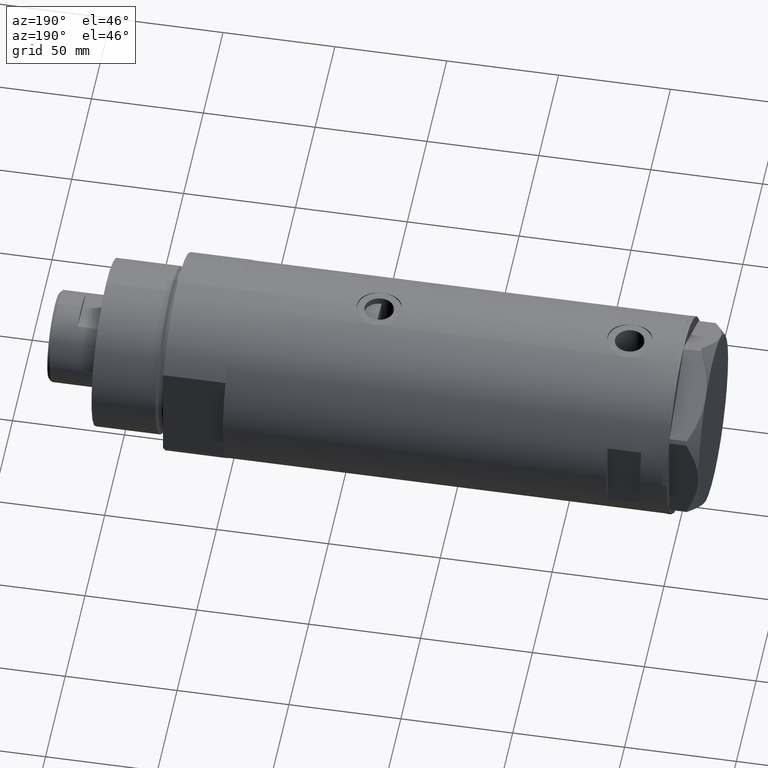
[diagram: clean part render]
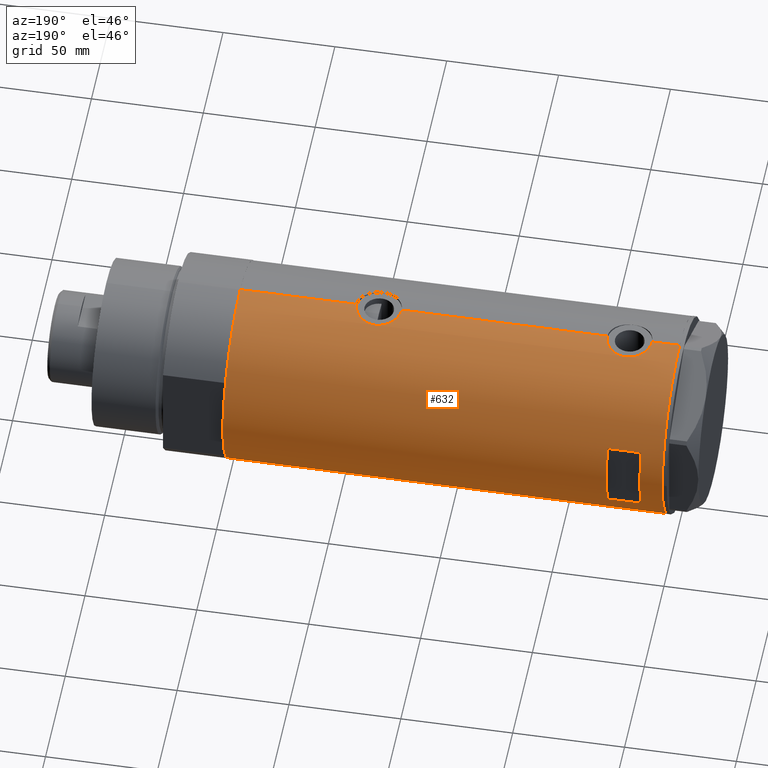
[diagram: same view with one face highlighted and labeled with its STEP entity id]
A machine part, auxiliary view. The second image highlights one B-rep face of the part: STEP entity #632.
In plain terms, the highlighted cylindrical surface (partial cylindrical patch) has radius 44 mm, axis along (-1, -0, 0).
Its self-contained STEP definition (entity closure, byte-faithful):
#7 = CARTESIAN_POINT ( 'NONE',  ( -43.66555354895124452, 5.415612800338318600, 77.32656357177557993 ) ) ;
#11 = CARTESIAN_POINT ( 'NONE',  ( 43.80640706382535399, 4.134078575915393294, -26.98867178437913239 ) ) ;
#26 = ORIENTED_EDGE ( 'NONE', *, *, #3050, .F. ) ;
#29 = B_SPLINE_CURVE_WITH_KNOTS ( 'NONE', 3,
 ( #2065, #353, #128, #1561, #1220, #1977, #2256, #2966, #4385, #4428, #1239, #515, #2329, #901, #2310, #3381, #304, #3032, #675, #3584, #1377, #3880, #2478, #698, #1806, #651, #2053, #89, #1448, #4303, #3832, #3136, #1022, #1548, #3695, #115, #3745, #2097, #3549, #4185, #1374, #3853, #11, #415, #1356, #3475, #1085, #362, #1749, #37 ),
 .UNSPECIFIED., .F., .F.,
 ( 4, 2, 2, 2, 2, 2, 2, 2, 2, 2, 2, 2, 2, 2, 2, 2, 2, 2, 2, 2, 2, 2, 2, 2, 4 ),
 ( 2.755634020688765633E-18, 0.001960456513248879772, 0.002940684769873318574, 0.003920913026497756942, 0.005881369539746635414, 0.006861597796371073782, 0.007841826052995512150, 0.009802282566244404499, 0.01078251082286885675, 0.01176273907949330899, 0.01274296733611776297, 0.01372319559274221522, 0.01568365210599110063, 0.01764410861923998777, 0.01960456513248886798, 0.02058479338911332196, 0.02156502164573776553, 0.02254524990236220564, 0.02352547815898664574, 0.02548593467223553288, 0.02646616292885997299, 0.02744639118548441656, 0.02940684769873329329, 0.03038707595535772993, 0.03136730421198216656 ),
 .UNSPECIFIED. ) ;
#32 = CARTESIAN_POINT ( 'NONE',  ( -43.71938389712227746, 4.966728892888062852, 78.01614452340872674 ) ) ;
#37 = CARTESIAN_POINT ( 'NONE',  ( 44.00000000000000000, -3.917142467416489149E-21, -26.10000000000000497 ) ) ;
#59 = CARTESIAN_POINT ( 'NONE',  ( -44.00000000000000000, 4.742435893011557518E-16, 80.45000000000001705 ) ) ;
#71 = LINE ( 'NONE', #406, #516 ) ;
#79 = CARTESIAN_POINT ( 'NONE',  ( -43.95549163632549750, 2.014511215452027937, 68.26941044295020333 ) ) ;
#89 = CARTESIAN_POINT ( 'NONE',  ( 42.92259096922158790, 9.678247830257131312, -33.49994006971207483 ) ) ;
#93 = VERTEX_POINT ( 'NONE', #2552 ) ;
#103 = CARTESIAN_POINT ( 'NONE',  ( -43.74833112883977293, 4.708208586952001617, 78.33050383508880543 ) ) ;
#115 = CARTESIAN_POINT ( 'NONE',  ( 43.35257020184194232, 7.523219862841651562, -29.50397445915864481 ) ) ;
#128 = CARTESIAN_POINT ( 'NONE',  ( 43.98503110884232825, 1.314607393679877445, -46.03470984345550221 ) ) ;
#137 = CARTESIAN_POINT ( 'NONE',  ( 43.61291203895921598, 5.829986172017926016, 67.76871289213170257 ) ) ;
#144 = LINE ( 'NONE', #4344, #3696 ) ;
#158 = CARTESIAN_POINT ( 'NONE',  ( 43.04663170950395568, 9.110642017076083121, 71.76452497809607678 ) ) ;
#177 = CARTESIAN_POINT ( 'NONE',  ( 43.27822890220284791, 7.945655169171516263, 69.79274616710709722 ) ) ;
#197 = CARTESIAN_POINT ( 'NONE',  ( 42.84863276153905787, 9.999733523508361088, 75.24130095249223871 ) ) ;
#211 = CARTESIAN_POINT ( 'NONE',  ( 15.96871942267132027, 40.99999999999999289, 73.20000000000000284 ) ) ;
#217 = CARTESIAN_POINT ( 'NONE',  ( 43.77939001959705223, 4.442287752090382291, 66.91693822440836925 ) ) ;
#228 = EDGE_CURVE ( 'NONE', #2196, #2758, #1218, .T. ) ;
#254 = CARTESIAN_POINT ( 'NONE',  ( -43.71938389712227035, 4.966728892888067293, -58.08385547659131021 ) ) ;
#290 = ORIENTED_EDGE ( 'NONE', *, *, #2412, .T. ) ;
#291 = CARTESIAN_POINT ( 'NONE',  ( 43.13962074468734897, 8.660138848900670538, 80.91089741163936822 ) ) ;
#303 = CARTESIAN_POINT ( 'NONE',  ( -43.95549163632549750, 2.014511215452028825, -67.83058955704980519 ) ) ;
#304 = CARTESIAN_POINT ( 'NONE',  ( 43.13897484505559987, 8.663345277311671921, -41.10529600060514355 ) ) ;
#308 = EDGE_LOOP ( 'NONE', ( #508, #290, #1293, #4309, #4290, #4366, #4537, #2753, #2470, #587, #2109, #3405 ) ) ;
#312 = EDGE_CURVE ( 'NONE', #3134, #1216, #29, .T. ) ;
#353 = CARTESIAN_POINT ( 'NONE',  ( 44.00000000000002132, 0.6630566900259828866, -46.10000000000002984 ) ) ;
#356 = CARTESIAN_POINT ( 'NONE',  ( -43.97068415157983878, 1.617901284326946909, 80.24045128300046770 ) ) ;
#362 = CARTESIAN_POINT ( 'NONE',  ( 43.99635668041006653, 0.6544833911834557760, -26.11599291522469457 ) ) ;
#374 = AXIS2_PLACEMENT_3D ( 'NONE', #381, #2547, #4288 ) ;
#381 = CARTESIAN_POINT ( 'NONE',  ( 0.000000000000000000, 0.000000000000000000, 88.20000000000000284 ) ) ;
#383 = CARTESIAN_POINT ( 'NONE',  ( -43.67867890111967455, 5.309046579850785541, 70.89577220923978018 ) ) ;
#406 = CARTESIAN_POINT ( 'NONE',  ( 15.96871942267132027, 40.99999999999999289, -98.20000000000000284 ) ) ;
#410 = EDGE_CURVE ( 'NONE', #2929, #1872, #3603, .T. ) ;
#412 = CARTESIAN_POINT ( 'NONE',  ( -43.55963022497231663, 6.210088036293396563, 75.01646163017424840 ) ) ;
#415 = CARTESIAN_POINT ( 'NONE',  ( 43.88561577393361546, 3.228056721358710135, -26.61278334272174817 ) ) ;
#478 = CARTESIAN_POINT ( 'NONE',  ( 43.17277162440354488, 8.493905080221262338, 70.61212964891505806 ) ) ;
#508 = ORIENTED_EDGE ( 'NONE', *, *, #1327, .T. ) ;
#515 = CARTESIAN_POINT ( 'NONE',  ( 43.50265731352001097, 6.601850423195605444, -43.61819167298953914 ) ) ;
#516 = VECTOR ( 'NONE', #1430, 1000.000000000000000 ) ;
#556 = DIRECTION ( 'NONE',  ( 0.000000000000000000, 0.000000000000000000, 1.000000000000000000 ) ) ;
#561 = CARTESIAN_POINT ( 'NONE',  ( -43.91413175532568403, 2.773555030353458850, -56.28415761633254277 ) ) ;
#569 = CARTESIAN_POINT ( 'NONE',  ( -43.55963022497232373, 6.210088036293401004, -61.08353836982577434 ) ) ;
#577 = CARTESIAN_POINT ( 'NONE',  ( -43.95446647384544292, 2.010857111636600969, -55.97875773636064878 ) ) ;
#587 = ORIENTED_EDGE ( 'NONE', *, *, #1507, .F. ) ;
#590 = CARTESIAN_POINT ( 'NONE',  ( -43.80687348212602217, 4.128385987736840512, -66.61048743310966813 ) ) ;
#591 = VECTOR ( 'NONE', #3412, 1000.000000000000000 ) ;
#618 = LINE ( 'NONE', #904, #2284 ) ;
#632 = ADVANCED_FACE ( 'NONE', ( #832, #2236 ), #3311, .T. ) ;
#636 = CARTESIAN_POINT ( 'NONE',  ( 43.68141895191831736, 5.292250119194734204, 84.39104952285195793 ) ) ;
#651 = CARTESIAN_POINT ( 'NONE',  ( 42.84850876528982155, 10.00026482975808051, -35.44941694529577347 ) ) ;
#675 = CARTESIAN_POINT ( 'NONE',  ( 43.04663170950394857, 9.110642017076081345, -40.23547502190394454 ) ) ;
#687 = CARTESIAN_POINT ( 'NONE',  ( -43.88883895882799635, 3.130924084324101297, 68.78687544251856423 ) ) ;
#698 = CARTESIAN_POINT ( 'NONE',  ( 42.86370458161098185, 9.935807968041572735, -37.40904550429866049 ) ) ;
#711 = CARTESIAN_POINT ( 'NONE',  ( -43.83593455218809254, 3.811409182021277431, 79.17014927703502281 ) ) ;
#740 = CARTESIAN_POINT ( 'NONE',  ( -43.99999999999997158, 0.4081702738789203533, 67.94999999999997442 ) ) ;
#747 = CIRCLE ( 'NONE', #1389, 44.00000000000000000 ) ;
#832 = FACE_BOUND ( 'NONE', #1620, .T. ) ;
#838 = CARTESIAN_POINT ( 'NONE',  ( 42.86370458161099606, 9.935807968041567406, 74.59095449570133951 ) ) ;
#863 = CARTESIAN_POINT ( 'NONE',  ( 43.46520118248735542, 6.843279251446916511, 68.60101672787835980 ) ) ;
#877 = EDGE_CURVE ( 'NONE', #2196, #2775, #2369, .T. ) ;
#887 = CARTESIAN_POINT ( 'NONE',  ( -44.00000000000000000, 6.472851849715296073E-16, -55.65000000000000568 ) ) ;
#901 = CARTESIAN_POINT ( 'NONE',  ( 43.35294442506074120, 7.532526048221052761, -42.70935414491112425 ) ) ;
#904 = CARTESIAN_POINT ( 'NONE',  ( 44.00000000000000000, 0.000000000000000000, -98.20000000000000284 ) ) ;
#905 = CARTESIAN_POINT ( 'NONE',  ( 0.000000000000000000, 0.000000000000000000, -98.20000000000000284 ) ) ;
#909 = CARTESIAN_POINT ( 'NONE',  ( -43.94507179847653333, 2.206027755801681867, -56.04868477718203224 ) ) ;
#919 = CARTESIAN_POINT ( 'NONE',  ( -43.88883895882800346, 3.130924084324098633, -67.31312455748147272 ) ) ;
#956 = EDGE_CURVE ( 'NONE', #4076, #4038, #71, .T. ) ;
#983 = CARTESIAN_POINT ( 'NONE',  ( -43.55382423478827292, 6.250151562062090882, -62.30589529487338041 ) ) ;
#1013 = CARTESIAN_POINT ( 'NONE',  ( -43.97754480947185129, 1.419697478855583617, 80.29003276052073090 ) ) ;
#1022 = CARTESIAN_POINT ( 'NONE',  ( 43.17306590853065273, 8.492365194390522731, -30.80987467306545113 ) ) ;
#1034 = CARTESIAN_POINT ( 'NONE',  ( -43.55382423478827292, 6.250151562062086441, 73.79410470512661391 ) ) ;
#1062 = CARTESIAN_POINT ( 'NONE',  ( -43.55973179376100290, 6.209370339246232717, 73.37938232940132366 ) ) ;
#1082 = CARTESIAN_POINT ( 'NONE',  ( -43.66575107734168171, 5.414026674167576658, 71.07064911962299902 ) ) ;
#1085 = CARTESIAN_POINT ( 'NONE',  ( 43.98169492814103876, 1.310824514239766536, -26.18080219619315585 ) ) ;
#1105 = CARTESIAN_POINT ( 'NONE',  ( -43.59867737633045692, 5.931302618788633296, 72.18750504970115855 ) ) ;
#1121 = DIRECTION ( 'NONE',  ( 0.000000000000000000, 0.000000000000000000, 1.000000000000000000 ) ) ;
#1152 = CARTESIAN_POINT ( 'NONE',  ( 43.71659050864931828, 5.015880325000608764, 67.22433174036180503 ) ) ;
#1168 = B_SPLINE_CURVE_WITH_KNOTS ( 'NONE', 3,
 ( #3621, #4361, #3671, #4041, #3261, #2216, #3645, #217, #1152, #137, #1586, #2925, #863, #2600, #177, #478, #1873, #3286, #158, #1516, #2945, #2651, #4018, #838, #197, #2262, #1920, #1566, #2994, #3101, #3430, #291, #1610, #2381, #2777, #4497, #4195, #1697, #4152, #636, #3756, #2023, #4543, #1982, #1673, #4519, #1308, #2041, #2739, #4477 ),
 .UNSPECIFIED., .F., .F.,
 ( 4, 2, 2, 2, 2, 2, 2, 2, 2, 2, 2, 2, 2, 2, 2, 2, 2, 2, 2, 2, 2, 2, 2, 2, 4 ),
 ( 2.479523669370822448E-18, 0.001960456513248879339, 0.002940684769873313370, 0.003920913026497747401, 0.005881369539746631077, 0.006861597796371071180, 0.007841826052995510415, 0.009802282566244392356, 0.01078251082286883072, 0.01176273907949326909, 0.01274296733611770746, 0.01372319559274214583, 0.01568365210599106593, 0.01764410861923998430, 0.01960456513248890267, 0.02058479338911334278, 0.02156502164573777941, 0.02254524990236221951, 0.02352547815898665615, 0.02548593467223552941, 0.02646616292885996952, 0.02744639118548440615, 0.02940684769873327942, 0.03038707595535771258, 0.03136730421198213881 ),
 .UNSPECIFIED. ) ;
#1215 = DIRECTION ( 'NONE',  ( 0.000000000000000000, 0.000000000000000000, 1.000000000000000000 ) ) ;
#1216 = VERTEX_POINT ( 'NONE', #4166 ) ;
#1218 = B_SPLINE_CURVE_WITH_KNOTS ( 'NONE', 3,
 ( #887, #4087, #1961, #2292, #3718, #577, #909, #561, #1942, #3408, #4434, #2263, #254, #4394, #2315, #3739, #1611, #1634, #4042, #4424, #569, #1951, #983, #3793, #1665, #3088, #1598, #3049, #4487, #4507, #3026, #4448, #590, #1322, #2750, #919, #2709, #1647, #303, #1300, #4165, #2032, #2394 ),
 .UNSPECIFIED., .F., .F.,
 ( 4, 2, 2, 2, 2, 2, 2, 2, 1, 2, 2, 2, 2, 2, 2, 2, 2, 2, 2, 2, 2, 4 ),
 ( 6.289190293195367850E-19, 0.001222818171749683351, 0.001834227257624524918, 0.002445636343499366702, 0.003668454515249052871, 0.004891272686998739475, 0.006114090858748426512, 0.006725499944623267862, 0.007336909030498110947, 0.007948318116372952297, 0.008559727202247794514, 0.009782545373997478949, 0.01100536354574716165, 0.01222818171749684782, 0.01283959080337170912, 0.01345099988924656868, 0.01467381806099629128, 0.01589663623274601215, 0.01650804531862087518, 0.01711945440449573475, 0.01834227257624545734, 0.01956509074799518341 ),
 .UNSPECIFIED. ) ;
#1220 = CARTESIAN_POINT ( 'NONE',  ( 43.92466059386730137, 2.593004216484785740, -45.76356669671356059 ) ) ;
#1221 = VERTEX_POINT ( 'NONE', #4209 ) ;
#1224 = CARTESIAN_POINT ( 'NONE',  ( -44.00000000000000000, 4.742435893011557518E-16, 80.45000000000001705 ) ) ;
#1239 = CARTESIAN_POINT ( 'NONE',  ( 43.57657781376907025, 6.094873943596692101, -44.03474301119596390 ) ) ;
#1279 = EDGE_CURVE ( 'NONE', #3464, #3134, #144, .T. ) ;
#1283 = CARTESIAN_POINT ( 'NONE',  ( 44.00000000000000000, 2.836945177865671897E-15, -46.10000000000000853 ) ) ;
#1293 = ORIENTED_EDGE ( 'NONE', *, *, #228, .F. ) ;
#1300 = CARTESIAN_POINT ( 'NONE',  ( -43.97181775256600389, 1.624866278047417012, -67.94892918385096436 ) ) ;
#1308 = CARTESIAN_POINT ( 'NONE',  ( 43.98169492814103165, 1.310824514239766536, 85.81919780380685836 ) ) ;
#1322 = CARTESIAN_POINT ( 'NONE',  ( -43.83576802966639008, 3.813209221108468938, -66.86865490354712449 ) ) ;
#1327 = EDGE_CURVE ( 'NONE', #3464, #1221, #1979, .T. ) ;
#1356 = CARTESIAN_POINT ( 'NONE',  ( 43.92756755766649235, 2.604528169608121946, -26.42286588097656974 ) ) ;
#1358 = EDGE_CURVE ( 'NONE', #3632, #4076, #3623, .T. ) ;
#1369 = CARTESIAN_POINT ( 'NONE',  ( -43.64122538274737195, 5.608286354294323317, 76.96611386963340351 ) ) ;
#1374 = CARTESIAN_POINT ( 'NONE',  ( 43.71454618729809738, 5.012329428678962806, -27.44063025941690270 ) ) ;
#1377 = CARTESIAN_POINT ( 'NONE',  ( 42.96879251999280314, 9.470609476412120031, -39.32722899941056482 ) ) ;
#1382 = CARTESIAN_POINT ( 'NONE',  ( -15.96871942267132027, 40.99999999999999289, 73.20000000000000284 ) ) ;
#1389 = AXIS2_PLACEMENT_3D ( 'NONE', #4305, #1121, #3273 ) ;
#1393 = CARTESIAN_POINT ( 'NONE',  ( -43.99413512814552263, 0.8228129877960659311, 67.99091685674179075 ) ) ;
#1410 = DIRECTION ( 'NONE',  ( 0.000000000000000000, 4.625929269271481378E-15, 1.000000000000000000 ) ) ;
#1418 = CARTESIAN_POINT ( 'NONE',  ( -44.00000000000000711, 0.4135148353567996149, 80.45000000000001705 ) ) ;
#1430 = DIRECTION ( 'NONE',  ( -0.000000000000000000, -0.000000000000000000, -1.000000000000000000 ) ) ;
#1437 = LINE ( 'NONE', #2070, #1840 ) ;
#1448 = CARTESIAN_POINT ( 'NONE',  ( 42.96547725528407113, 9.488625330801086832, -32.87549652788927546 ) ) ;
#1463 = CARTESIAN_POINT ( 'NONE',  ( -44.00000000000000000, 5.388445916248353619E-15, 98.20000000000000284 ) ) ;
#1507 = EDGE_CURVE ( 'NONE', #1216, #93, #618, .T. ) ;
#1516 = CARTESIAN_POINT ( 'NONE',  ( 42.99303682946563043, 9.360292926890506848, 72.36575779792798357 ) ) ;
#1527 = VECTOR ( 'NONE', #2512, 1000.000000000000000 ) ;
#1548 = CARTESIAN_POINT ( 'NONE',  ( 43.24261242176996234, 8.130827601038834729, -30.26944813145831148 ) ) ;
#1561 = CARTESIAN_POINT ( 'NONE',  ( 43.94229162222111285, 2.275476993733913655, -45.84314464222307350 ) ) ;
#1566 = CARTESIAN_POINT ( 'NONE',  ( 42.92259096922160211, 9.678247830257127760, 78.50005993028796070 ) ) ;
#1577 = EDGE_CURVE ( 'NONE', #4038, #4414, #3102, .T. ) ;
#1581 = CARTESIAN_POINT ( 'NONE',  ( 0.000000000000000000, 0.000000000000000000, -98.20000000000000284 ) ) ;
#1586 = CARTESIAN_POINT ( 'NONE',  ( 43.57657781376909156, 6.094873943596678778, 67.96525698880405741 ) ) ;
#1598 = CARTESIAN_POINT ( 'NONE',  ( -43.62981559643959883, 5.696090409300659019, -64.48051365414528391 ) ) ;
#1607 = CARTESIAN_POINT ( 'NONE',  ( -44.00000000000000000, 5.388445781992449847E-15, -68.15000000000001990 ) ) ;
#1610 = CARTESIAN_POINT ( 'NONE',  ( 43.17306590853067405, 8.492365194390513849, 81.19012532693457729 ) ) ;
#1611 = CARTESIAN_POINT ( 'NONE',  ( -43.61859254253774054, 5.782454868881357513, -59.50213599105533291 ) ) ;
#1620 = EDGE_LOOP ( 'NONE', ( #26, #3410, #4476, #4494 ) ) ;
#1634 = CARTESIAN_POINT ( 'NONE',  ( -43.59995593514495482, 5.920088975424572908, -59.88582091308221322 ) ) ;
#1642 = DIRECTION ( 'NONE',  ( 0.000000000000000000, 0.000000000000000000, 1.000000000000000000 ) ) ;
#1647 = CARTESIAN_POINT ( 'NONE',  ( -43.92459115390705193, 2.581892149021001615, -67.59545827073348789 ) ) ;
#1665 = CARTESIAN_POINT ( 'NONE',  ( -43.58221825186232223, 6.049526113783029402, -63.52262970817960763 ) ) ;
#1670 = VECTOR ( 'NONE', #1642, 1000.000000000000000 ) ;
#1673 = CARTESIAN_POINT ( 'NONE',  ( 43.92756755766649235, 2.604528169608113064, 85.57713411902345513 ) ) ;
#1697 = CARTESIAN_POINT ( 'NONE',  ( 43.50382207688846847, 6.605942769308303930, 83.43604688838220795 ) ) ;
#1749 = CARTESIAN_POINT ( 'NONE',  ( 44.00000000000002132, 0.3269372501759380545, -26.10000000000001918 ) ) ;
#1772 = CARTESIAN_POINT ( 'NONE',  ( -43.71901936021023971, 4.969830049220626655, 70.38832362301124590 ) ) ;
#1806 = CARTESIAN_POINT ( 'NONE',  ( 42.84863276153905787, 9.999733523508369970, -36.75869904750778261 ) ) ;
#1820 = CARTESIAN_POINT ( 'NONE',  ( -43.55386785759471024, 6.249847571481740971, 74.61054947617955690 ) ) ;
#1840 = VECTOR ( 'NONE', #3492, 1000.000000000000000 ) ;
#1872 = VERTEX_POINT ( 'NONE', #2277 ) ;
#1873 = CARTESIAN_POINT ( 'NONE',  ( 43.13897484505560698, 8.663345277311673698, 70.89470399939492040 ) ) ;
#1920 = CARTESIAN_POINT ( 'NONE',  ( 42.86396777580258544, 9.934664719553397916, 77.21576199026523568 ) ) ;
#1931 = VERTEX_POINT ( 'NONE', #1463 ) ;
#1937 = DIRECTION ( 'NONE',  ( 1.000000000000000000, 0.000000000000000000, 0.000000000000000000 ) ) ;
#1942 = CARTESIAN_POINT ( 'NONE',  ( -43.88968326835893663, 3.132363423941624259, -56.47620767643520168 ) ) ;
#1945 = CARTESIAN_POINT ( 'NONE',  ( -44.00000000000000000, 6.472851849715296073E-16, -55.65000000000000568 ) ) ;
#1951 = CARTESIAN_POINT ( 'NONE',  ( -43.55386785759470314, 6.249847571481745412, -61.48945052382045873 ) ) ;
#1961 = CARTESIAN_POINT ( 'NONE',  ( -43.99417607942193342, 0.8200150578638759624, -55.69063327483257808 ) ) ;
#1977 = CARTESIAN_POINT ( 'NONE',  ( 43.88297407487991109, 3.222431612395382228, -45.57228202029342157 ) ) ;
#1979 = CIRCLE ( 'NONE', #3840, 44.00000000000000000 ) ;
#1982 = CARTESIAN_POINT ( 'NONE',  ( 43.88561577393361546, 3.228056721358708359, 85.38721665727824472 ) ) ;
#2023 = CARTESIAN_POINT ( 'NONE',  ( 43.77712723341632994, 4.432620652875498557, 84.86995009759974096 ) ) ;
#2032 = CARTESIAN_POINT ( 'NONE',  ( -44.00000000000000711, 0.4081702738789189655, -68.15000000000003411 ) ) ;
#2041 = CARTESIAN_POINT ( 'NONE',  ( 43.99635668041008074, 0.6544833911834539997, 85.88400708477533385 ) ) ;
#2053 = CARTESIAN_POINT ( 'NONE',  ( 42.86396777580258544, 9.934664719553399692, -34.78423800973479274 ) ) ;
#2065 = CARTESIAN_POINT ( 'NONE',  ( 44.00000000000000000, 2.836945177865671897E-15, -46.10000000000000853 ) ) ;
#2070 = CARTESIAN_POINT ( 'NONE',  ( -44.00000000000000000, 5.388445916248353619E-15, -98.20000000000000284 ) ) ;
#2092 = CARTESIAN_POINT ( 'NONE',  ( -43.91315028150560096, 2.769134003554746482, 68.59317380624599991 ) ) ;
#2097 = CARTESIAN_POINT ( 'NONE',  ( 43.50382207688846847, 6.605942769308304818, -28.56395311161779915 ) ) ;
#2109 = ORIENTED_EDGE ( 'NONE', *, *, #312, .F. ) ;
#2111 = CARTESIAN_POINT ( 'NONE',  ( -43.61859254253774054, 5.782454868881351295, 76.59786400894466851 ) ) ;
#2143 = CARTESIAN_POINT ( 'NONE',  ( -43.80687348212602217, 4.128385987736833407, 69.48951256689038303 ) ) ;
#2163 = CARTESIAN_POINT ( 'NONE',  ( -15.96871942267132027, 40.99999999999999289, -98.20000000000000284 ) ) ;
#2196 = VERTEX_POINT ( 'NONE', #1945 ) ;
#2216 = CARTESIAN_POINT ( 'NONE',  ( 43.88297407487991109, 3.222431612395379119, 66.42771797970659975 ) ) ;
#2236 = FACE_OUTER_BOUND ( 'NONE', #308, .T. ) ;
#2256 = CARTESIAN_POINT ( 'NONE',  ( 43.85884410404901246, 3.534688330930388922, -45.46019808750336466 ) ) ;
#2262 = CARTESIAN_POINT ( 'NONE',  ( 42.84850876528983576, 10.00026482975808229, 76.55058305470424784 ) ) ;
#2263 = CARTESIAN_POINT ( 'NONE',  ( -43.74833112883975872, 4.708208586952008723, -57.76949616491121731 ) ) ;
#2277 = CARTESIAN_POINT ( 'NONE',  ( 44.00000000000000000, 0.000000000000000000, 98.20000000000000284 ) ) ;
#2284 = VECTOR ( 'NONE', #556, 1000.000000000000000 ) ;
#2292 = CARTESIAN_POINT ( 'NONE',  ( -43.97754480947186551, 1.419697478855586059, -55.80996723947924210 ) ) ;
#2310 = CARTESIAN_POINT ( 'NONE',  ( 43.27822890220284080, 7.945655169171516263, -42.20725383289290278 ) ) ;
#2315 = CARTESIAN_POINT ( 'NONE',  ( -43.66555354895123031, 5.415612800338319488, -58.77343642822444281 ) ) ;
#2329 = CARTESIAN_POINT ( 'NONE',  ( 43.46520118248736253, 6.843279251446920064, -43.39898327212166151 ) ) ;
#2338 = CARTESIAN_POINT ( 'NONE',  ( -44.00000000000000000, 5.388445916248353619E-15, -98.20000000000000284 ) ) ;
#2359 = EDGE_CURVE ( 'NONE', #3709, #1931, #3742, .T. ) ;
#2369 = LINE ( 'NONE', #3963, #1527 ) ;
#2378 = CARTESIAN_POINT ( 'NONE',  ( -44.00000000000000000, 5.388445781982983516E-15, 67.95000000000001705 ) ) ;
#2381 = CARTESIAN_POINT ( 'NONE',  ( 43.24261242176996234, 8.130827601038829400, 81.73055186854172405 ) ) ;
#2394 = CARTESIAN_POINT ( 'NONE',  ( -44.00000000000000000, 5.388445781992449847E-15, -68.15000000000001990 ) ) ;
#2412 = EDGE_CURVE ( 'NONE', #1221, #2758, #1437, .T. ) ;
#2421 = CARTESIAN_POINT ( 'NONE',  ( -43.94507179847653333, 2.206027755801677870, 80.05131522281796208 ) ) ;
#2444 = EDGE_CURVE ( 'NONE', #3709, #2775, #2445, .T. ) ;
#2445 = B_SPLINE_CURVE_WITH_KNOTS ( 'NONE', 3,
 ( #59, #1418, #3144, #1013, #356, #3847, #2421, #2522, #4222, #711, #2850, #103, #32, #4266, #7, #1369, #2111, #3211, #2797, #4244, #412, #1820, #1034, #1062, #2448, #1105, #3543, #3187, #1082, #383, #1772, #3916, #2143, #2779, #3872, #687, #2092, #3516, #79, #3945, #1393, #740, #2872 ),
 .UNSPECIFIED., .F., .F.,
 ( 4, 2, 2, 2, 2, 2, 2, 2, 1, 2, 2, 2, 2, 2, 2, 2, 2, 2, 2, 2, 2, 4 ),
 ( 4.607873388256435088E-19, 0.001222818171749670340, 0.001834227257624505619, 0.002445636343499341114, 0.003668454515249027284, 0.004891272686998713454, 0.006114090858748398756, 0.006725499944623259188, 0.007336909030498119620, 0.007948318116372978318, 0.008559727202247837882, 0.009782545373997518848, 0.01100536354574719981, 0.01222818171749687904, 0.01283959080337173861, 0.01345099988924659644, 0.01467381806099631383, 0.01589663623274603296, 0.01650804531862088906, 0.01711945440449574862, 0.01834227257624546428, 0.01956509074799517994 ),
 .UNSPECIFIED. ) ;
#2448 = CARTESIAN_POINT ( 'NONE',  ( -43.58221825186232223, 6.049526113783018744, 72.57737029182041510 ) ) ;
#2470 = ORIENTED_EDGE ( 'NONE', *, *, #3713, .F. ) ;
#2478 = CARTESIAN_POINT ( 'NONE',  ( 42.90786968859021044, 9.742642423712174704, -38.37802296547129544 ) ) ;
#2512 = DIRECTION ( 'NONE',  ( 0.000000000000000000, 0.000000000000000000, 1.000000000000000000 ) ) ;
#2522 = CARTESIAN_POINT ( 'NONE',  ( -43.91413175532567692, 2.773555030353453965, 79.81584238366747286 ) ) ;
#2547 = DIRECTION ( 'NONE',  ( -0.000000000000000000, -0.000000000000000000, -1.000000000000000000 ) ) ;
#2552 = CARTESIAN_POINT ( 'NONE',  ( 44.00000000000000000, -2.552687571866728611E-15, 65.90000000000001990 ) ) ;
#2580 = DIRECTION ( 'NONE',  ( 0.000000000000000000, 0.000000000000000000, 1.000000000000000000 ) ) ;
#2600 = CARTESIAN_POINT ( 'NONE',  ( 43.35294442506074120, 7.532526048221051873, 69.29064585508892549 ) ) ;
#2645 = DIRECTION ( 'NONE',  ( 1.000000000000000000, 0.000000000000000000, 0.000000000000000000 ) ) ;
#2651 = CARTESIAN_POINT ( 'NONE',  ( 42.92624534982631701, 9.661626915142809580, 73.29991995855291975 ) ) ;
#2709 = CARTESIAN_POINT ( 'NONE',  ( -43.91315028150559385, 2.769134003554746037, -67.50682619375406546 ) ) ;
#2739 = CARTESIAN_POINT ( 'NONE',  ( 44.00000000000000711, 0.3269372501759374994, 85.90000000000001990 ) ) ;
#2750 = CARTESIAN_POINT ( 'NONE',  ( -43.87596296923811678, 3.305851531861740522, -67.20803585876262787 ) ) ;
#2753 = ORIENTED_EDGE ( 'NONE', *, *, #410, .F. ) ;
#2758 = VERTEX_POINT ( 'NONE', #1607 ) ;
#2775 = VERTEX_POINT ( 'NONE', #2378 ) ;
#2777 = CARTESIAN_POINT ( 'NONE',  ( 43.27871541412905287, 7.937063204555986573, 81.99174997246032603 ) ) ;
#2779 = CARTESIAN_POINT ( 'NONE',  ( -43.83576802966640429, 3.813209221108459168, 69.23134509645289825 ) ) ;
#2797 = CARTESIAN_POINT ( 'NONE',  ( -43.58362292239462477, 6.039157555656595733, 75.82263578448043972 ) ) ;
#2807 = VECTOR ( 'NONE', #1215, 1000.000000000000000 ) ;
#2850 = CARTESIAN_POINT ( 'NONE',  ( -43.80646232387288563, 4.132500855894024383, 78.90645585403358098 ) ) ;
#2872 = CARTESIAN_POINT ( 'NONE',  ( -44.00000000000000000, 5.388445781982983516E-15, 67.95000000000001705 ) ) ;
#2925 = CARTESIAN_POINT ( 'NONE',  ( 43.50265731352001808, 6.601850423195591233, 68.38180832701048928 ) ) ;
#2929 = VERTEX_POINT ( 'NONE', #3567 ) ;
#2945 = CARTESIAN_POINT ( 'NONE',  ( 42.96879251999280314, 9.470609476412112926, 72.67277100058944939 ) ) ;
#2966 = CARTESIAN_POINT ( 'NONE',  ( 43.77939001959705223, 4.442287752090387620, -45.08306177559163075 ) ) ;
#2994 = CARTESIAN_POINT ( 'NONE',  ( 42.96547725528407824, 9.488625330801083280, 79.12450347211071744 ) ) ;
#3026 = CARTESIAN_POINT ( 'NONE',  ( -43.71901936021025392, 4.969830049220633761, -65.71167637698874842 ) ) ;
#3032 = CARTESIAN_POINT ( 'NONE',  ( 43.07598348983508174, 8.971306953823013686, -40.52969423187187914 ) ) ;
#3049 = CARTESIAN_POINT ( 'NONE',  ( -43.64133398152736021, 5.607447751852158824, -64.66786045012435125 ) ) ;
#3050 = EDGE_CURVE ( 'NONE', #4414, #3632, #4331, .T. ) ;
#3088 = CARTESIAN_POINT ( 'NONE',  ( -43.59867737633045692, 5.931302618788640402, -63.91249495029889260 ) ) ;
#3101 = CARTESIAN_POINT ( 'NONE',  ( 43.04652664061922707, 9.111152824375430725, 80.03458009214594426 ) ) ;
#3102 = CIRCLE ( 'NONE', #3705, 44.00000000000000000 ) ;
#3134 = VERTEX_POINT ( 'NONE', #1283 ) ;
#3136 = CARTESIAN_POINT ( 'NONE',  ( 43.13962074468733476, 8.660138848900677644, -31.08910258836065665 ) ) ;
#3144 = CARTESIAN_POINT ( 'NONE',  ( -43.99417607942194763, 0.8200150578638748522, 80.40936672516741623 ) ) ;
#3187 = CARTESIAN_POINT ( 'NONE',  ( -43.64133398152736021, 5.607447751852152606, 71.43213954987568570 ) ) ;
#3211 = CARTESIAN_POINT ( 'NONE',  ( -43.59995593514495482, 5.920088975424566691, 76.21417908691780951 ) ) ;
#3215 = CARTESIAN_POINT ( 'NONE',  ( 44.00000000000000000, 0.000000000000000000, -98.20000000000000284 ) ) ;
#3261 = CARTESIAN_POINT ( 'NONE',  ( 43.92466059386729427, 2.593004216484783964, 66.23643330328646073 ) ) ;
#3273 = DIRECTION ( 'NONE',  ( 1.000000000000000000, 0.000000000000000000, 0.000000000000000000 ) ) ;
#3286 = CARTESIAN_POINT ( 'NONE',  ( 43.07598348983507464, 8.971306953823011909, 71.47030576812815639 ) ) ;
#3311 = CYLINDRICAL_SURFACE ( 'NONE', #4505, 44.00000000000000000 ) ;
#3337 = DIRECTION ( 'NONE',  ( 0.000000000000000000, 0.000000000000000000, 1.000000000000000000 ) ) ;
#3339 = DIRECTION ( 'NONE',  ( 0.000000000000000000, 0.000000000000000000, 1.000000000000000000 ) ) ;
#3381 = CARTESIAN_POINT ( 'NONE',  ( 43.17277162440355198, 8.493905080221264114, -41.38787035108497037 ) ) ;
#3405 = ORIENTED_EDGE ( 'NONE', *, *, #1279, .F. ) ;
#3408 = CARTESIAN_POINT ( 'NONE',  ( -43.83593455218809964, 3.811409182021281428, -56.92985072296500704 ) ) ;
#3410 = ORIENTED_EDGE ( 'NONE', *, *, #1577, .F. ) ;
#3412 = DIRECTION ( 'NONE',  ( 0.000000000000000000, 0.000000000000000000, 1.000000000000000000 ) ) ;
#3430 = CARTESIAN_POINT ( 'NONE',  ( 43.07641822757289418, 8.969229373860565957, 80.33396235790173989 ) ) ;
#3431 = EDGE_CURVE ( 'NONE', #1872, #1931, #747, .T. ) ;
#3464 = VERTEX_POINT ( 'NONE', #4525 ) ;
#3475 = CARTESIAN_POINT ( 'NONE',  ( 43.97062489912107708, 1.639461988184801156, -26.22985373334014625 ) ) ;
#3492 = DIRECTION ( 'NONE',  ( 0.000000000000000000, 0.000000000000000000, 1.000000000000000000 ) ) ;
#3516 = CARTESIAN_POINT ( 'NONE',  ( -43.92459115390705193, 2.581892149020998950, 68.50454172926654905 ) ) ;
#3530 = CARTESIAN_POINT ( 'NONE',  ( 0.000000000000000000, 0.000000000000000000, 73.20000000000018758 ) ) ;
#3543 = CARTESIAN_POINT ( 'NONE',  ( -43.62981559643959883, 5.696090409300652802, 71.61948634585476725 ) ) ;
#3549 = CARTESIAN_POINT ( 'NONE',  ( 43.57805684119164624, 6.103282219787168117, -28.15183798352141054 ) ) ;
#3567 = CARTESIAN_POINT ( 'NONE',  ( 44.00000000000000000, -3.917104602093038540E-21, 85.90000000000000568 ) ) ;
#3584 = CARTESIAN_POINT ( 'NONE',  ( 42.99303682946562333, 9.360292926890512177, -39.63424220207205195 ) ) ;
#3603 = LINE ( 'NONE', #3215, #1670 ) ;
#3621 = CARTESIAN_POINT ( 'NONE',  ( 44.00000000000000000, -2.552687571866728611E-15, 65.90000000000001990 ) ) ;
#3623 = CIRCLE ( 'NONE', #374, 44.00000000000000000 ) ;
#3632 = VERTEX_POINT ( 'NONE', #3948 ) ;
#3645 = CARTESIAN_POINT ( 'NONE',  ( 43.85884410404901246, 3.534688330930384925, 66.53980191249667087 ) ) ;
#3671 = CARTESIAN_POINT ( 'NONE',  ( 43.98503110884232115, 1.314607393679875669, 65.96529015654452621 ) ) ;
#3683 = CARTESIAN_POINT ( 'NONE',  ( 15.96871942267132027, 40.99999999999999289, 88.20000000000000284 ) ) ;
#3695 = CARTESIAN_POINT ( 'NONE',  ( 43.27871541412904577, 7.937063204555981244, -30.00825002753968107 ) ) ;
#3696 = VECTOR ( 'NONE', #2580, 1000.000000000000000 ) ;
#3705 = AXIS2_PLACEMENT_3D ( 'NONE', #3530, #1410, #4259 ) ;
#3709 = VERTEX_POINT ( 'NONE', #1224 ) ;
#3713 = EDGE_CURVE ( 'NONE', #93, #2929, #1168, .T. ) ;
#3718 = CARTESIAN_POINT ( 'NONE',  ( -43.97068415157985299, 1.617901284326948907, -55.85954871699957636 ) ) ;
#3739 = CARTESIAN_POINT ( 'NONE',  ( -43.64122538274736485, 5.608286354294326870, -59.13388613036661212 ) ) ;
#3742 = LINE ( 'NONE', #2338, #591 ) ;
#3745 = CARTESIAN_POINT ( 'NONE',  ( 43.39051256276903246, 7.301963662770314833, -29.25975531787057804 ) ) ;
#3756 = CARTESIAN_POINT ( 'NONE',  ( 43.71454618729810448, 5.012329428678959253, 84.55936974058313638 ) ) ;
#3793 = CARTESIAN_POINT ( 'NONE',  ( -43.55973179376098869, 6.209370339246239823, -62.72061767059870618 ) ) ;
#3832 = CARTESIAN_POINT ( 'NONE',  ( 43.07641822757289418, 8.969229373860574839, -31.66603764209828498 ) ) ;
#3840 = AXIS2_PLACEMENT_3D ( 'NONE', #905, #3339, #1937 ) ;
#3847 = CARTESIAN_POINT ( 'NONE',  ( -43.95446647384543581, 2.010857111636599637, 80.12124226363938817 ) ) ;
#3853 = CARTESIAN_POINT ( 'NONE',  ( 43.77712723341632284, 4.432620652875501222, -27.13004990240029457 ) ) ;
#3872 = CARTESIAN_POINT ( 'NONE',  ( -43.87596296923810968, 3.305851531861728976, 68.89196414123739487 ) ) ;
#3880 = CARTESIAN_POINT ( 'NONE',  ( 42.92624534982631701, 9.661626915142814909, -38.70008004144708735 ) ) ;
#3916 = CARTESIAN_POINT ( 'NONE',  ( -43.74805001749254529, 4.711035428619386956, 70.07223935874202425 ) ) ;
#3945 = CARTESIAN_POINT ( 'NONE',  ( -43.97181775256600389, 1.624866278047415680, 68.15107081614905837 ) ) ;
#3948 = CARTESIAN_POINT ( 'NONE',  ( -15.96871942267132027, 40.99999999999999289, 88.20000000000000284 ) ) ;
#3963 = CARTESIAN_POINT ( 'NONE',  ( -44.00000000000000000, 5.388445916248353619E-15, -98.20000000000000284 ) ) ;
#4018 = CARTESIAN_POINT ( 'NONE',  ( 42.90786968859021044, 9.742642423712171151, 73.62197703452876851 ) ) ;
#4038 = VERTEX_POINT ( 'NONE', #211 ) ;
#4041 = CARTESIAN_POINT ( 'NONE',  ( 43.94229162222111285, 2.275476993733910547, 66.15685535777693360 ) ) ;
#4042 = CARTESIAN_POINT ( 'NONE',  ( -43.58362292239463187, 6.039157555656604615, -60.27736421551959722 ) ) ;
#4076 = VERTEX_POINT ( 'NONE', #3683 ) ;
#4087 = CARTESIAN_POINT ( 'NONE',  ( -44.00000000000000000, 0.4135148353567994484, -55.64999999999999858 ) ) ;
#4152 = CARTESIAN_POINT ( 'NONE',  ( 43.57805684119164624, 6.103282219787165452, 83.84816201647861078 ) ) ;
#4165 = CARTESIAN_POINT ( 'NONE',  ( -43.99413512814552263, 0.8228129877960710381, -68.10908314325826041 ) ) ;
#4166 = CARTESIAN_POINT ( 'NONE',  ( 44.00000000000000000, -3.917142467416489149E-21, -26.10000000000000497 ) ) ;
#4185 = CARTESIAN_POINT ( 'NONE',  ( 43.68141895191831026, 5.292250119194736868, -27.60895047714807049 ) ) ;
#4195 = CARTESIAN_POINT ( 'NONE',  ( 43.39051256276903246, 7.301963662770311281, 82.74024468212945749 ) ) ;
#4209 = CARTESIAN_POINT ( 'NONE',  ( -44.00000000000000000, 5.388445916248353619E-15, -98.20000000000000284 ) ) ;
#4222 = CARTESIAN_POINT ( 'NONE',  ( -43.88968326835893663, 3.132363423941621150, 79.62379232356479974 ) ) ;
#4244 = CARTESIAN_POINT ( 'NONE',  ( -43.57657963456318839, 6.089610171536606664, 75.62178539580813208 ) ) ;
#4259 = DIRECTION ( 'NONE',  ( 0.000000000000000000, 1.000000000000000000, -4.731064025391292434E-15 ) ) ;
#4266 = CARTESIAN_POINT ( 'NONE',  ( -43.67863969133946966, 5.309394106110037370, 77.50379296502549664 ) ) ;
#4288 = DIRECTION ( 'NONE',  ( 1.000000000000000000, -8.881784197001252323E-16, 0.000000000000000000 ) ) ;
#4290 = ORIENTED_EDGE ( 'NONE', *, *, #2444, .F. ) ;
#4303 = CARTESIAN_POINT ( 'NONE',  ( 43.04652664061919864, 9.111152824375430725, -31.96541990785411969 ) ) ;
#4305 = CARTESIAN_POINT ( 'NONE',  ( 0.000000000000000000, 0.000000000000000000, 98.20000000000000284 ) ) ;
#4309 = ORIENTED_EDGE ( 'NONE', *, *, #877, .T. ) ;
#4331 = LINE ( 'NONE', #2163, #2807 ) ;
#4344 = CARTESIAN_POINT ( 'NONE',  ( 44.00000000000000000, 0.000000000000000000, -98.20000000000000284 ) ) ;
#4361 = CARTESIAN_POINT ( 'NONE',  ( 44.00000000000002132, 0.6630566900259825536, 65.90000000000003411 ) ) ;
#4366 = ORIENTED_EDGE ( 'NONE', *, *, #2359, .T. ) ;
#4385 = CARTESIAN_POINT ( 'NONE',  ( 43.71659050864931828, 5.015880325000608764, -44.77566825963823050 ) ) ;
#4394 = CARTESIAN_POINT ( 'NONE',  ( -43.67863969133946256, 5.309394106110041811, -58.59620703497452610 ) ) ;
#4414 = VERTEX_POINT ( 'NONE', #1382 ) ;
#4424 = CARTESIAN_POINT ( 'NONE',  ( -43.57657963456318839, 6.089610171536609329, -60.47821460419189066 ) ) ;
#4428 = CARTESIAN_POINT ( 'NONE',  ( 43.61291203895919466, 5.829986172017925128, -44.23128710786829743 ) ) ;
#4434 = CARTESIAN_POINT ( 'NONE',  ( -43.80646232387289274, 4.132500855894034153, -57.19354414596645597 ) ) ;
#4448 = CARTESIAN_POINT ( 'NONE',  ( -43.74805001749253819, 4.711035428619393173, -66.02776064125799849 ) ) ;
#4476 = ORIENTED_EDGE ( 'NONE', *, *, #956, .F. ) ;
#4477 = CARTESIAN_POINT ( 'NONE',  ( 44.00000000000000000, -3.917104602093038540E-21, 85.90000000000000568 ) ) ;
#4487 = CARTESIAN_POINT ( 'NONE',  ( -43.66575107734169592, 5.414026674167585540, -65.02935088037702371 ) ) ;
#4494 = ORIENTED_EDGE ( 'NONE', *, *, #1358, .F. ) ;
#4497 = CARTESIAN_POINT ( 'NONE',  ( 43.35257020184194232, 7.523219862841656891, 82.49602554084137296 ) ) ;
#4505 = AXIS2_PLACEMENT_3D ( 'NONE', #1581, #3337, #2645 ) ;
#4507 = CARTESIAN_POINT ( 'NONE',  ( -43.67867890111968876, 5.309046579850795311, -65.20422779076025677 ) ) ;
#4519 = CARTESIAN_POINT ( 'NONE',  ( 43.97062489912108418, 1.639461988184795604, 85.77014626665985020 ) ) ;
#4525 = CARTESIAN_POINT ( 'NONE',  ( 44.00000000000000000, 0.000000000000000000, -98.20000000000000284 ) ) ;
#4537 = ORIENTED_EDGE ( 'NONE', *, *, #3431, .F. ) ;
#4543 = CARTESIAN_POINT ( 'NONE',  ( 43.80640706382536109, 4.134078575915387965, 85.01132821562090669 ) ) ;